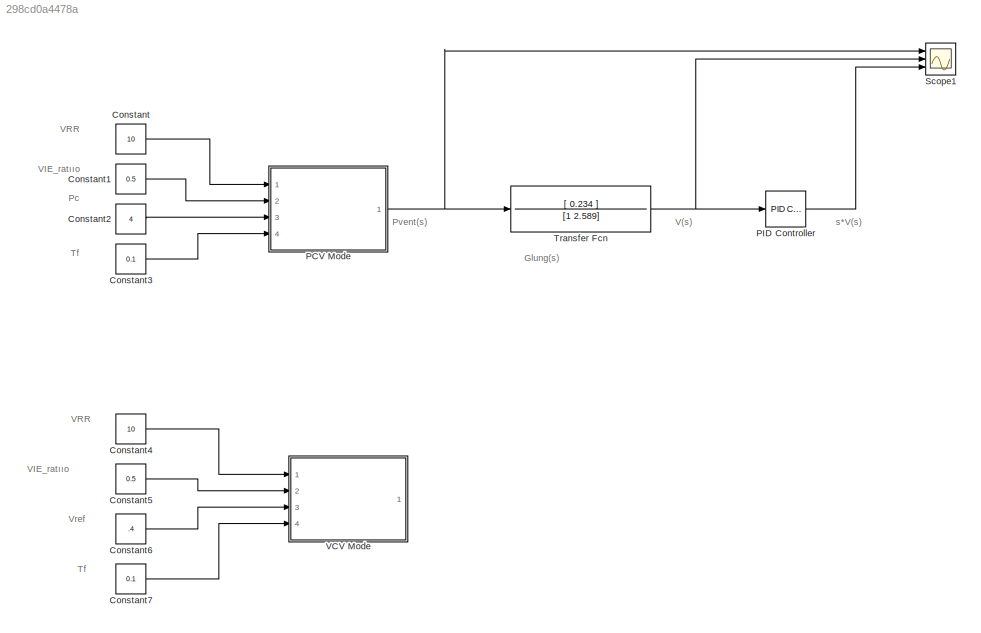
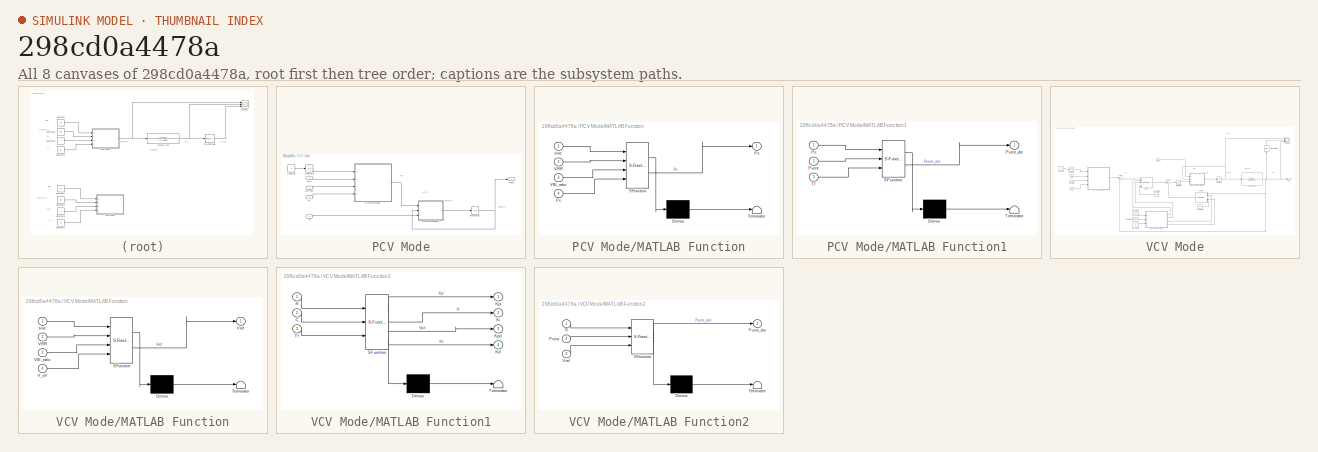
[diagram: thumbnail index - all 8 canvases of the model, root first then tree order]
MODEL slx_298cd0a4478a
KIND model
CONFIG AbsTol = auto
CONFIG EnableMultiTasking = on
CONFIG FixedStep = 0.01
CONFIG MaxStep = auto
CONFIG MinStep = auto
CONFIG RelTol = 1e-3
CONFIG SampleTimeConstraint = Unconstrained
CONFIG Solver = ode1
CONFIG SolverName = ode1
CONFIG StartTime = 0.0
CONFIG StopTime = 60
BLOCK [Constant] Constant
  Commented = on
  Value = 10
  VectorParams1D = off
BLOCK [Constant] Constant1
  Commented = on
  Value = 0.5
BLOCK [Constant] Constant2
  Commented = on
  Value = 4
BLOCK [Constant] Constant3
  Commented = on
  Value = 0.1
BLOCK [Constant] Constant4
  Value = 10
BLOCK [Constant] Constant5
  Value = 0.5
BLOCK [Constant] Constant6
  Value = .4
BLOCK [Constant] Constant7
  Value = 0.1
BLOCK [SubSystem] PCV Mode
  Commented = on
  Ports = [4, 1]
  RequestExecContextInheritance = off
BLOCK [Constant] PCV Mode/Constant
BLOCK [Integrator] PCV Mode/Integrator
  Ports = [1, 1]
BLOCK [Integrator] PCV Mode/Integrator1
  Ports = [1, 1]
BLOCK [SubSystem] PCV Mode/MATLAB Function
  ErrorFcn = Stateflow.Translate.translate
  PermitHierarchicalResolution = ExplicitOnly
  Ports = [4, 1]
  RequestExecContextInheritance = off
  SFBlockType = MATLAB Function
  TreatAsAtomicUnit = on
BLOCK [Demux] PCV Mode/MATLAB Function/ Demux 
  DisplayOption = bar
  Outputs = 1
  Ports = [1, 1]
BLOCK [S-Function] PCV Mode/MATLAB Function/ SFunction 
  EnableBusSupport = on
  FunctionName = sf_sfun
  PortCounts = [4 2]
  Ports = [4, 2]
  SFcnIsStateOwnerBlock = off
  SFunctionDeploymentMode = off
  Tag = Stateflow S-Function Final_Q2_j 2
BLOCK [Terminator] PCV Mode/MATLAB Function/ Terminator 
BLOCK [Inport] PCV Mode/MATLAB Function/Pc
  IconDisplay = Port number
  Port = 4
BLOCK [Outport] PCV Mode/MATLAB Function/Ps
  IconDisplay = Port number
  VectorParamsAs1DForOutWhenUnconnected = on
BLOCK [Inport] PCV Mode/MATLAB Function/VIE_ratio
  IconDisplay = Port number
  Port = 3
BLOCK [Inport] PCV Mode/MATLAB Function/VRR
  IconDisplay = Port number
  Port = 2
BLOCK [Inport] PCV Mode/MATLAB Function/time
  IconDisplay = Port number
BLOCK [SubSystem] PCV Mode/MATLAB Function1
  ErrorFcn = Stateflow.Translate.translate
  PermitHierarchicalResolution = ExplicitOnly
  Ports = [3, 1]
  RequestExecContextInheritance = off
  SFBlockType = MATLAB Function
  TreatAsAtomicUnit = on
BLOCK [Demux] PCV Mode/MATLAB Function1/ Demux 
  DisplayOption = bar
  Outputs = 1
  Ports = [1, 1]
BLOCK [S-Function] PCV Mode/MATLAB Function1/ SFunction 
  EnableBusSupport = on
  FunctionName = sf_sfun
  PortCounts = [3 2]
  Ports = [3, 2]
  SFcnIsStateOwnerBlock = off
  SFunctionDeploymentMode = off
  Tag = Stateflow S-Function Final_Q2_j 4
BLOCK [Terminator] PCV Mode/MATLAB Function1/ Terminator 
BLOCK [Inport] PCV Mode/MATLAB Function1/Ps
  IconDisplay = Port number
BLOCK [Inport] PCV Mode/MATLAB Function1/Pvent
  IconDisplay = Port number
  Port = 2
BLOCK [Outport] PCV Mode/MATLAB Function1/Pvent_dot
  IconDisplay = Port number
  VectorParamsAs1DForOutWhenUnconnected = on
BLOCK [Inport] PCV Mode/MATLAB Function1/Tf
  IconDisplay = Port number
  Port = 3
BLOCK [Inport] PCV Mode/Pc
  IconDisplay = Port number
  Port = 3
BLOCK [Outport] PCV Mode/Pvent
  IconDisplay = Port number
  VectorParamsAs1DForOutWhenUnconnected = on
BLOCK [Inport] PCV Mode/Tf
  IconDisplay = Port number
  Port = 4
BLOCK [Inport] PCV Mode/VIE_ratio
  IconDisplay = Port number
  Port = 2
BLOCK [Inport] PCV Mode/VRR
  IconDisplay = Port number
BLOCK [Reference] PID Controller  REF=simulink/Continuous/PID Controller
  Commented = on
  Ports = [1, 1]
  SourceBlock = simulink/Continuous/PID Controller
  SourceProductBaseCode = SL
  SourceType = PID 1dof
BLOCK [Scope] Scope1
  Commented = on
  Floating = off
  NumInputPorts = 3
  Ports = [3]
  ScopeSpecificationString = Simulink.scopes.TimeScopeBlockCfg('CurrentConfiguration', extmgr.ConfigurationSet(extmgr.Configuration('Core','General UI',true,'FigureColor',[1 1 1]),extmgr.Configuration('Core','Source UI',true),extmgr.Configuration('Sources','WiredSimulink',true,'DataLoggingVariableName','ScopeData1'),extmgr.Configuration('Visuals','Time Domain',true,'SerializedDisplays',{struct('MinYLimReal','-2.33527','MaxYLi...<+3171ch>
BLOCK [TransferFcn] Transfer Fcn
  Commented = on
  Denominator = [1 2.589]
  Numerator = [ 0.234 ]
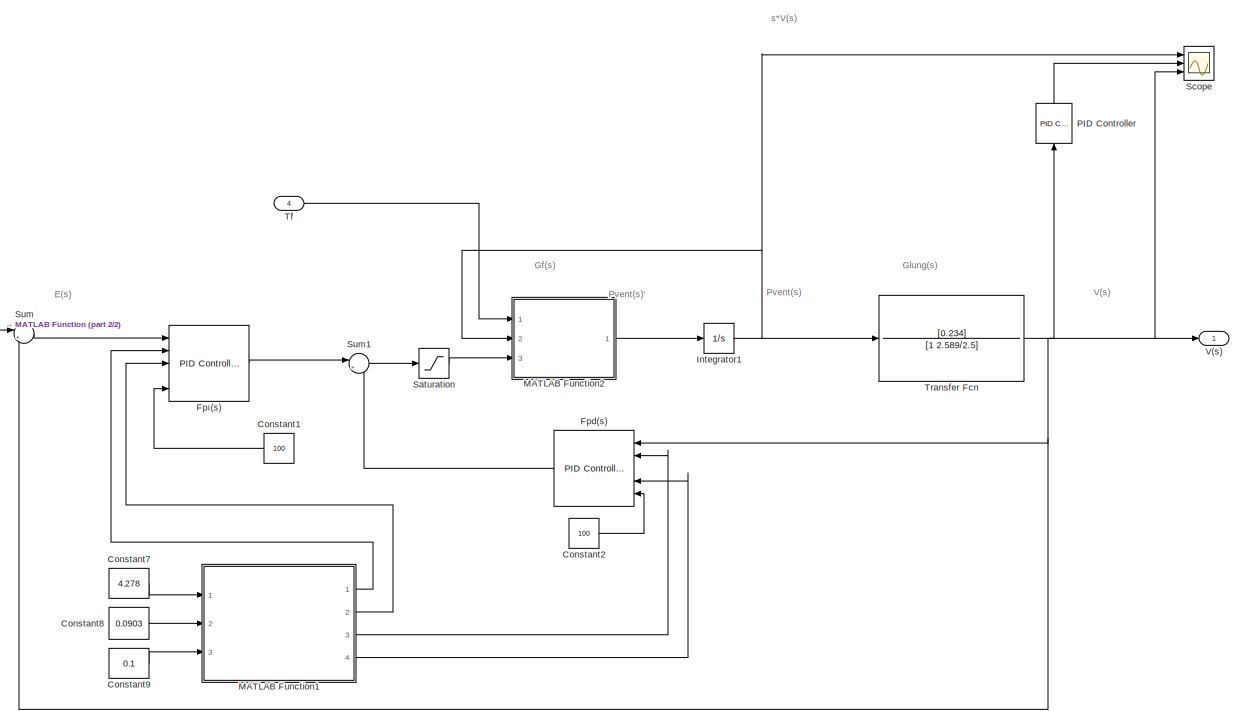
[diagram: VCV Mode - part 1/2, most of the canvas]
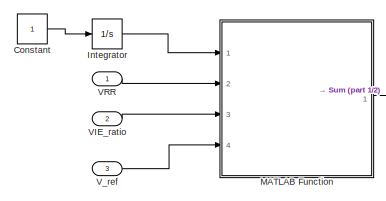
[diagram: VCV Mode - part 2/2, middle left region]
BLOCK [SubSystem] VCV Mode
  Ports = [4, 1]
  RequestExecContextInheritance = off
BLOCK [Constant] VCV Mode/Constant
BLOCK [Constant] VCV Mode/Constant1
  Value = 100
BLOCK [Constant] VCV Mode/Constant2
  Value = 100
BLOCK [Constant] VCV Mode/Constant7
  Value = 4.278
BLOCK [Constant] VCV Mode/Constant8
  Value = 0.0903
BLOCK [Constant] VCV Mode/Constant9
  Value = 0.1
BLOCK [Reference] VCV Mode/Fpd(s)  REF=simulink/Continuous/PID Controller
  Ports = [5, 1]
  SourceBlock = simulink/Continuous/PID Controller
  SourceProductBaseCode = SL
  SourceType = PID 1dof
BLOCK [Reference] VCV Mode/Fpı(s)  REF=simulink/Continuous/PID Controller
  Ports = [5, 1]
  SourceBlock = simulink/Continuous/PID Controller
  SourceProductBaseCode = SL
  SourceType = PID 1dof
BLOCK [Integrator] VCV Mode/Integrator
  Ports = [1, 1]
BLOCK [Integrator] VCV Mode/Integrator1
  Ports = [1, 1]
BLOCK [SubSystem] VCV Mode/MATLAB Function
  ErrorFcn = Stateflow.Translate.translate
  PermitHierarchicalResolution = ExplicitOnly
  Ports = [4, 1]
  RequestExecContextInheritance = off
  SFBlockType = MATLAB Function
  TreatAsAtomicUnit = on
BLOCK [Demux] VCV Mode/MATLAB Function/ Demux 
  DisplayOption = bar
  Outputs = 1
  Ports = [1, 1]
BLOCK [S-Function] VCV Mode/MATLAB Function/ SFunction 
  EnableBusSupport = on
  FunctionName = sf_sfun
  PortCounts = [4 2]
  Ports = [4, 2]
  SFcnIsStateOwnerBlock = off
  SFunctionDeploymentMode = off
  Tag = Stateflow S-Function Final_Q2_j 1
BLOCK [Terminator] VCV Mode/MATLAB Function/ Terminator 
BLOCK [Inport] VCV Mode/MATLAB Function/VIE_ratio
  IconDisplay = Port number
  Port = 3
BLOCK [Inport] VCV Mode/MATLAB Function/VRR
  IconDisplay = Port number
  Port = 2
BLOCK [Inport] VCV Mode/MATLAB Function/V_ref
  IconDisplay = Port number
  Port = 4
BLOCK [Outport] VCV Mode/MATLAB Function/Vref
  IconDisplay = Port number
  VectorParamsAs1DForOutWhenUnconnected = on
BLOCK [Inport] VCV Mode/MATLAB Function/time
  IconDisplay = Port number
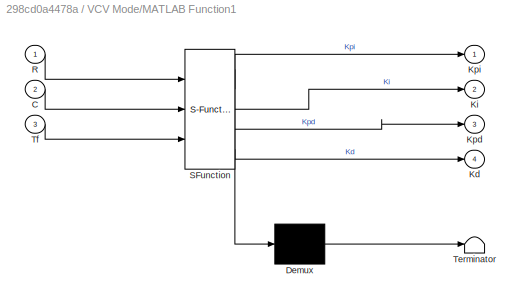
BLOCK [SubSystem] VCV Mode/MATLAB Function1
  ErrorFcn = Stateflow.Translate.translate
  PermitHierarchicalResolution = ExplicitOnly
  Ports = [3, 4]
  RequestExecContextInheritance = off
  SFBlockType = MATLAB Function
  TreatAsAtomicUnit = on
BLOCK [Demux] VCV Mode/MATLAB Function1/ Demux 
  DisplayOption = bar
  Outputs = 1
  Ports = [1, 1]
BLOCK [S-Function] VCV Mode/MATLAB Function1/ SFunction 
  EnableBusSupport = on
  FunctionName = sf_sfun
  PortCounts = [3 5]
  Ports = [3, 5]
  SFcnIsStateOwnerBlock = off
  SFunctionDeploymentMode = off
  Tag = Stateflow S-Function Final_Q2_j 3
BLOCK [Terminator] VCV Mode/MATLAB Function1/ Terminator 
BLOCK [Inport] VCV Mode/MATLAB Function1/C
  IconDisplay = Port number
  Port = 2
BLOCK [Outport] VCV Mode/MATLAB Function1/Kd
  IconDisplay = Port number
  Port = 4
  VectorParamsAs1DForOutWhenUnconnected = on
BLOCK [Outport] VCV Mode/MATLAB Function1/Ki
  IconDisplay = Port number
  Port = 2
  VectorParamsAs1DForOutWhenUnconnected = on
BLOCK [Outport] VCV Mode/MATLAB Function1/Kpd
  IconDisplay = Port number
  Port = 3
  VectorParamsAs1DForOutWhenUnconnected = on
BLOCK [Outport] VCV Mode/MATLAB Function1/Kpi
  IconDisplay = Port number
  VectorParamsAs1DForOutWhenUnconnected = on
BLOCK [Inport] VCV Mode/MATLAB Function1/R
  IconDisplay = Port number
BLOCK [Inport] VCV Mode/MATLAB Function1/Tf
  IconDisplay = Port number
  Port = 3
BLOCK [SubSystem] VCV Mode/MATLAB Function2
  ErrorFcn = Stateflow.Translate.translate
  PermitHierarchicalResolution = ExplicitOnly
  Ports = [3, 1]
  RequestExecContextInheritance = off
  SFBlockType = MATLAB Function
  TreatAsAtomicUnit = on
BLOCK [Demux] VCV Mode/MATLAB Function2/ Demux 
  DisplayOption = bar
  Outputs = 1
  Ports = [1, 1]
BLOCK [S-Function] VCV Mode/MATLAB Function2/ SFunction 
  EnableBusSupport = on
  FunctionName = sf_sfun
  PortCounts = [3 2]
  Ports = [3, 2]
  SFcnIsStateOwnerBlock = off
  SFunctionDeploymentMode = off
  Tag = Stateflow S-Function Final_Q2_j 5
BLOCK [Terminator] VCV Mode/MATLAB Function2/ Terminator 
BLOCK [Inport] VCV Mode/MATLAB Function2/Pvent
  IconDisplay = Port number
  Port = 2
BLOCK [Outport] VCV Mode/MATLAB Function2/Pvent_dot
  IconDisplay = Port number
  VectorParamsAs1DForOutWhenUnconnected = on
BLOCK [Inport] VCV Mode/MATLAB Function2/Tf
  IconDisplay = Port number
BLOCK [Inport] VCV Mode/MATLAB Function2/Vref
  IconDisplay = Port number
  Port = 3
BLOCK [Reference] VCV Mode/PID Controller  REF=simulink/Continuous/PID Controller
  Ports = [1, 1]
  SourceBlock = simulink/Continuous/PID Controller
  SourceProductBaseCode = SL
  SourceType = PID 1dof
BLOCK [Saturate] VCV Mode/Saturation
  InputPortMap = u0
  LowerLimit = 0
  Ports = [1, 1]
  UpperLimit = 30
BLOCK [Scope] VCV Mode/Scope
  Floating = off
  NumInputPorts = 3
  Ports = [3]
  ScopeSpecificationString = Simulink.scopes.TimeScopeBlockCfg('CurrentConfiguration', extmgr.ConfigurationSet(extmgr.Configuration('Core','General UI',true,'FigureColor',[1 1 1]),extmgr.Configuration('Core','Source UI',true),extmgr.Configuration('Sources','WiredSimulink',true,'DataLoggingVariableName','ScopeData2'),extmgr.Configuration('Visuals','Time Domain',true,'SerializedDisplays',{struct('MinYLimReal','-0.0','MaxYLimRea...<+3150ch>
BLOCK [Sum] VCV Mode/Sum
  IconShape = round
  InputSameDT = off
  Inputs = |+-
  OutDataTypeStr = Inherit: Inherit via internal rule
  Ports = [2, 1]
  SaturateOnIntegerOverflow = off
BLOCK [Sum] VCV Mode/Sum1
  IconShape = round
  InputSameDT = off
  Inputs = |+-
  OutDataTypeStr = Inherit: Inherit via internal rule
  Ports = [2, 1]
  SaturateOnIntegerOverflow = off
BLOCK [Inport] VCV Mode/Tf
  IconDisplay = Port number
  Port = 4
BLOCK [TransferFcn] VCV Mode/Transfer Fcn
  Denominator = [1 2.589/2.5]
  Numerator = [0.234]
BLOCK [Outport] VCV Mode/V(s)
  IconDisplay = Port number
  VectorParamsAs1DForOutWhenUnconnected = on
BLOCK [Inport] VCV Mode/VIE_ratio
  IconDisplay = Port number
  Port = 2
BLOCK [Inport] VCV Mode/VRR
  IconDisplay = Port number
BLOCK [Inport] VCV Mode/V_ref
  IconDisplay = Port number
  Port = 3
ANNOTATION (root): Pc
ANNOTATION (root): Tf
ANNOTATION (root): VIE_ratııo
ANNOTATION (root): VRR
ANNOTATION (root): Vref
ANNOTATION (root): Glung(s)
ANNOTATION (root): Pvent(s)
ANNOTATION (root): V(s)
ANNOTATION (root): s*V(s)
ANNOTATION PCV Mode: Gf(s)
ANNOTATION PCV Mode: P(s)
ANNOTATION PCV Mode: Pvent(s) '
ANNOTATION PCV Mode: Pvent(s)
ANNOTATION VCV Mode: Gf(s)
ANNOTATION VCV Mode: Glung(s)
ANNOTATION VCV Mode: Pvent(s)'
ANNOTATION VCV Mode: s*V(s)
ANNOTATION VCV Mode: E(s)
ANNOTATION VCV Mode: Pvent(s)
ANNOTATION VCV Mode: V(s)
LINE Constant1:1 -> PCV Mode:2
LINE Constant2:1 -> PCV Mode:3
LINE Constant3:1 -> PCV Mode:4
LINE Constant4:1 -> VCV Mode:1
LINE Constant5:1 -> VCV Mode:2
LINE Constant6:1 -> VCV Mode:3
LINE Constant7:1 -> VCV Mode:4
LINE Constant:1 -> PCV Mode:1
LINE PCV Mode/Constant:1 -> PCV Mode/Integrator:1
NET PCV Mode/Integrator1:1 -> PCV Mode/MATLAB Function1:2, PCV Mode/Pvent:1
LINE PCV Mode/Integrator:1 -> PCV Mode/MATLAB Function:1
LINE PCV Mode/MATLAB Function1:1 -> PCV Mode/Integrator1:1
LINE PCV Mode/MATLAB Function:1 -> PCV Mode/MATLAB Function1:1
LINE PCV Mode/Pc:1 -> PCV Mode/MATLAB Function:4
LINE PCV Mode/Tf:1 -> PCV Mode/MATLAB Function1:3
LINE PCV Mode/VIE_ratio:1 -> PCV Mode/MATLAB Function:3
LINE PCV Mode/VRR:1 -> PCV Mode/MATLAB Function:2
NET PCV Mode:1 -> Scope1:1, Transfer Fcn:1
LINE PID Controller:1 -> Scope1:3
NET Transfer Fcn:1 -> PID Controller:1, Scope1:2
LINE VCV Mode/Constant1:1 -> VCV Mode/Fpı(s):5
LINE VCV Mode/Constant2:1 -> VCV Mode/Fpd(s):5
LINE VCV Mode/Constant7:1 -> VCV Mode/MATLAB Function1:1
LINE VCV Mode/Constant8:1 -> VCV Mode/MATLAB Function1:2
LINE VCV Mode/Constant9:1 -> VCV Mode/MATLAB Function1:3
LINE VCV Mode/Constant:1 -> VCV Mode/Integrator:1
LINE VCV Mode/Fpd(s):1 -> VCV Mode/Sum1:2
LINE VCV Mode/Fpı(s):1 -> VCV Mode/Sum1:1
NET VCV Mode/Integrator1:1 -> VCV Mode/MATLAB Function2:2, VCV Mode/Scope:1, VCV Mode/Transfer Fcn:1
LINE VCV Mode/Integrator:1 -> VCV Mode/MATLAB Function:1
LINE VCV Mode/MATLAB Function1:1 -> VCV Mode/Fpı(s):2
LINE VCV Mode/MATLAB Function1:2 -> VCV Mode/Fpı(s):3
LINE VCV Mode/MATLAB Function1:3 -> VCV Mode/Fpd(s):2
LINE VCV Mode/MATLAB Function1:4 -> VCV Mode/Fpd(s):4
LINE VCV Mode/MATLAB Function2:1 -> VCV Mode/Integrator1:1
LINE VCV Mode/MATLAB Function:1 -> VCV Mode/Sum:1
LINE VCV Mode/PID Controller:1 -> VCV Mode/Scope:2
LINE VCV Mode/Saturation:1 -> VCV Mode/MATLAB Function2:3
LINE VCV Mode/Sum1:1 -> VCV Mode/Saturation:1
LINE VCV Mode/Sum:1 -> VCV Mode/Fpı(s):1
LINE VCV Mode/Tf:1 -> VCV Mode/MATLAB Function2:1
NET VCV Mode/Transfer Fcn:1 -> VCV Mode/Fpd(s):1, VCV Mode/PID Controller:1, VCV Mode/Scope:3, VCV Mode/Sum:2, VCV Mode/V(s):1
LINE VCV Mode/VIE_ratio:1 -> VCV Mode/MATLAB Function:3
LINE VCV Mode/VRR:1 -> VCV Mode/MATLAB Function:2
LINE VCV Mode/V_ref:1 -> VCV Mode/MATLAB Function:4
note: NET lines group one-source signal fan-out (src -> all destinations, sorted); 1:1 wires keep LINE
CHART VCV Mode/MATLAB Function states=1 transitions=1
  STATE_LABEL 'eML_blk_kernel()'
  STATE_LABEL 'SCRIPT:\nfunction Vref = Vref_producer(time,VRR,VIE_ratio ,V_ref)\n\nstop_time = 60; % stop time is given as 60 seconds\n\n% Ti - Inspiratory Time (s)     Te - Expiratory Time (s)\n% VRR - Ventilator Respiratory Rate (breaths/min) is 10.\n% VIE_ratio ventilator inspiratory/expiratory rate is 0.5.\n% \n% There are 2 two equations.\n%\n%   60\n% ------ = Ti + Te     and     Ti = Te x VIE_ratio\n%   VRR\n% \n% in m...<+506ch>'
CHART PCV Mode/MATLAB Function states=1 transitions=1
  STATE_LABEL 'eML_blk_kernel()'
  STATE_LABEL 'SCRIPT:\nfunction Ps = P_producer(time,VRR,VIE_ratio ,Pc)\n\nstop_time = 60; % stop time is given as 60 seconds\n\n% Ti - Inspiratory Time (s)     Te - Expiratory Time (s)\n% VRR - Ventilator Respiratory Rate (breaths/min) is 10.\n% VIE_ratio ventilator inspiratory/expiratory rate is 0.5.\n% \n% There are 2 two equations.\n%\n%   60\n% ------ = Ti + Te     and     Ti = Te x VIE\n%   VRR\n% \n% in matrix form;\n% ...<+485ch>'
CHART VCV Mode/MATLAB Function1 states=1 transitions=1
  STATE_LABEL 'eML_blk_kernel()'
  STATE_LABEL 'SCRIPT:\nfunction [Kpi,Ki, Kpd ,Kd ] = calcute_control_param(R,C,Tf)\nKpi = (16*R)/(25*Tf);\nKpd = (32*R)/(5*Tf) - 1/C;\nKi = (64*R)/(25*Tf^2);\nKd = (23*R)/5 - Tf/C;\nend\n'
CHART PCV Mode/MATLAB Function1 states=1 transitions=1
  STATE_LABEL 'eML_blk_kernel()'
  STATE_LABEL "SCRIPT:\nfunction Pvent_dot = filter(Ps,Pvent,Tf)\n% Gf(s) = Pvent/ Ps = 1/( Tf*s + 1)\n% Pvent* (Tf*s + 1) = Ps\n% Pvent*Tf*s + Pvent = Ps\n%\n% In time domain \n% Pvent(t)' * Tf + Pvent(t) = P(t)\n% Pvent(t)' = (P(t)  - Pvent(t))/ Tf\nPvent_dot = (Ps  - Pvent)/ Tf;\n\nend\n"
CHART VCV Mode/MATLAB Function2 states=1 transitions=1
  STATE_LABEL 'eML_blk_kernel()'
  STATE_LABEL "SCRIPT:\nfunction Pvent_dot = filter(Tf,Pvent,Vref)\n% Gf(s) = Pvent/ Vref = 1/( Tf*s + 1)\n% Pvent* (Tf*s + 1) = Vref\n% Pvent*Tf*s + Pvent = Vref\n%\n% In time domain \n% Pvent(t)' * Tf + V(t) = Vref(t)\n% Pvent(t)' = (Vref(t)  - Pvent(t))/ Tf\n% Pvent_dot = (Vref  - Pvent)/ Tf;\nPvent_dot = (Vref  - Pvent)/ Tf;\n\nend\n"
